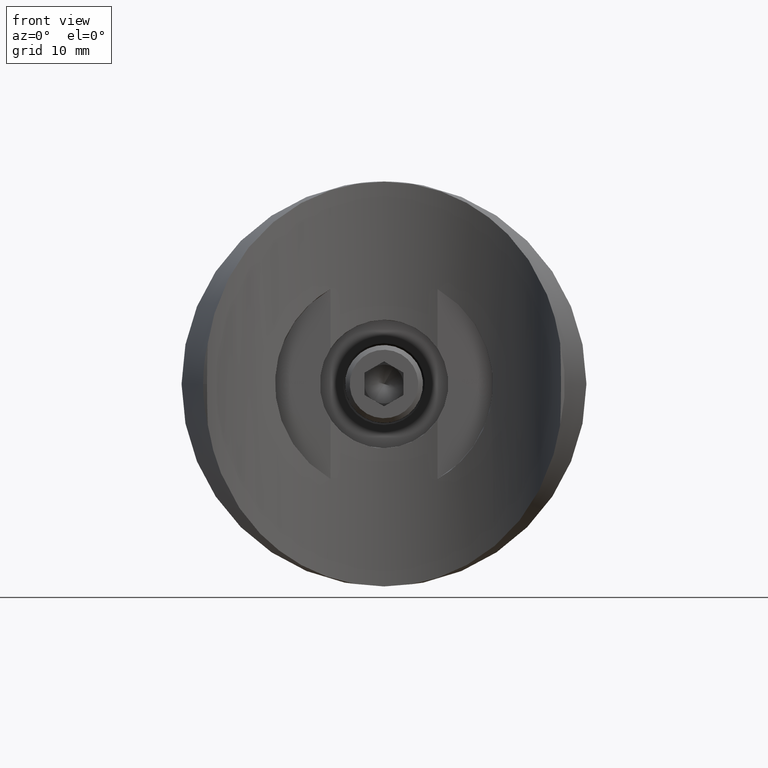
[diagram: clean part render]
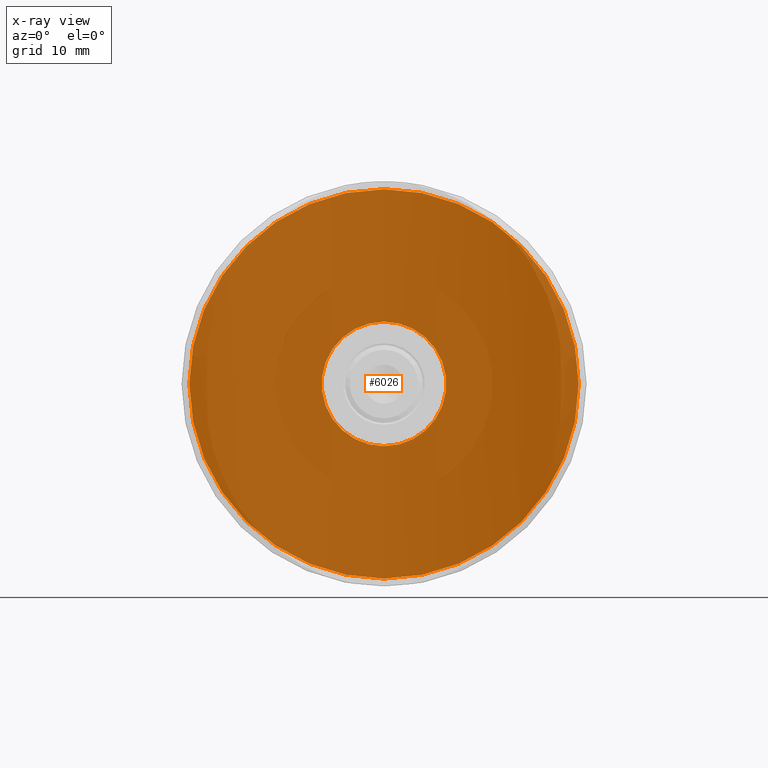
[diagram: x-ray — body ghosted, one internal face saturated and labeled with its STEP entity id]
A machine part, front view, then the same camera in x-ray: the body is ghosted and one INTERNAL B-rep face — a face not visible from any outside direction — is saturated and labeled: STEP entity #6026.
In plain terms, the highlighted planar face has unit normal (0, -1, 0).
Its self-contained STEP definition (entity closure, byte-faithful):
#26 = VERTEX_POINT ( 'NONE', #11664 ) ;
#105 = EDGE_CURVE ( 'NONE', #3313, #6255, #8591, .T. ) ;
#738 = DIRECTION ( 'NONE',  ( -0.000000000000000000, 1.000000000000000000, -0.000000000000000000 ) ) ;
#767 = VERTEX_POINT ( 'NONE', #7011 ) ;
#1744 = EDGE_CURVE ( 'NONE', #767, #26, #14180, .T. ) ;
#2122 = ORIENTED_EDGE ( 'NONE', *, *, #1744, .T. ) ;
#2564 = FACE_BOUND ( 'NONE', #9863, .T. ) ;
#2661 = DIRECTION ( 'NONE',  ( 0.000000000000000000, 0.000000000000000000, 1.000000000000000000 ) ) ;
#3313 = VERTEX_POINT ( 'NONE', #13792 ) ;
#3352 = CARTESIAN_POINT ( 'NONE',  ( 7.000000000000000888, -4.000000000000000000, 0.000000000000000000 ) ) ;
#3405 = DIRECTION ( 'NONE',  ( -0.000000000000000000, 1.000000000000000000, 0.000000000000000000 ) ) ;
#3873 = EDGE_CURVE ( 'NONE', #26, #767, #18326, .T. ) ;
#4066 = DIRECTION ( 'NONE',  ( -0.000000000000000000, 1.000000000000000000, -0.000000000000000000 ) ) ;
#4189 = CARTESIAN_POINT ( 'NONE',  ( 5.457486406938542366E-16, -4.000000000000000000, 0.000000000000000000 ) ) ;
#4848 = DIRECTION ( 'NONE',  ( 0.000000000000000000, 0.000000000000000000, 1.000000000000000000 ) ) ;
#6026 = ADVANCED_FACE ( 'NONE', ( #2564, #16904 ), #7812, .F. ) ;
#6255 = VERTEX_POINT ( 'NONE', #11712 ) ;
#7011 = CARTESIAN_POINT ( 'NONE',  ( 1.525466080011738479E-15, -4.000000000000000000, 8.000000000000014211 ) ) ;
#7060 = CARTESIAN_POINT ( 'NONE',  ( 5.457486406938542366E-16, -4.000000000000000000, 0.000000000000000000 ) ) ;
#7232 = AXIS2_PLACEMENT_3D ( 'NONE', #3352, #3405, #4848 ) ;
#7812 = PLANE ( 'NONE',  #7232 ) ;
#8591 = CIRCLE ( 'NONE', #12317, 25.00000000000000000 ) ;
#8903 = DIRECTION ( 'NONE',  ( 0.000000000000000000, 0.000000000000000000, 1.000000000000000000 ) ) ;
#9168 = AXIS2_PLACEMENT_3D ( 'NONE', #7060, #4066, #2661 ) ;
#9863 = EDGE_LOOP ( 'NONE', ( #11367, #2122 ) ) ;
#10115 = EDGE_CURVE ( 'NONE', #6255, #3313, #17612, .T. ) ;
#10621 = ORIENTED_EDGE ( 'NONE', *, *, #10115, .F. ) ;
#11367 = ORIENTED_EDGE ( 'NONE', *, *, #3873, .T. ) ;
#11604 = AXIS2_PLACEMENT_3D ( 'NONE', #12612, #738, #12476 ) ;
#11664 = CARTESIAN_POINT ( 'NONE',  ( 5.457486406938542366E-16, -4.000000000000000000, -8.000000000000014211 ) ) ;
#11665 = DIRECTION ( 'NONE',  ( -0.000000000000000000, 1.000000000000000000, -0.000000000000000000 ) ) ;
#11712 = CARTESIAN_POINT ( 'NONE',  ( 3.607365638562237181E-15, -4.000000000000000000, -25.00000000000000000 ) ) ;
#11837 = AXIS2_PLACEMENT_3D ( 'NONE', #13133, #11665, #8903 ) ;
#12317 = AXIS2_PLACEMENT_3D ( 'NONE', #4189, #16015, #13177 ) ;
#12476 = DIRECTION ( 'NONE',  ( 0.000000000000000000, 0.000000000000000000, 1.000000000000000000 ) ) ;
#12612 = CARTESIAN_POINT ( 'NONE',  ( 5.457486406938542366E-16, -4.000000000000000000, 0.000000000000000000 ) ) ;
#13133 = CARTESIAN_POINT ( 'NONE',  ( 5.457486406938542366E-16, -4.000000000000000000, 0.000000000000000000 ) ) ;
#13177 = DIRECTION ( 'NONE',  ( 0.000000000000000000, 0.000000000000000000, 1.000000000000000000 ) ) ;
#13486 = EDGE_LOOP ( 'NONE', ( #14634, #10621 ) ) ;
#13792 = CARTESIAN_POINT ( 'NONE',  ( 5.457486406938542366E-16, -4.000000000000000000, 25.00000000000000000 ) ) ;
#14180 = CIRCLE ( 'NONE', #11604, 8.000000000000014211 ) ;
#14634 = ORIENTED_EDGE ( 'NONE', *, *, #105, .F. ) ;
#16015 = DIRECTION ( 'NONE',  ( -0.000000000000000000, 1.000000000000000000, -0.000000000000000000 ) ) ;
#16904 = FACE_OUTER_BOUND ( 'NONE', #13486, .T. ) ;
#17612 = CIRCLE ( 'NONE', #11837, 25.00000000000000000 ) ;
#18326 = CIRCLE ( 'NONE', #9168, 8.000000000000014211 ) ;